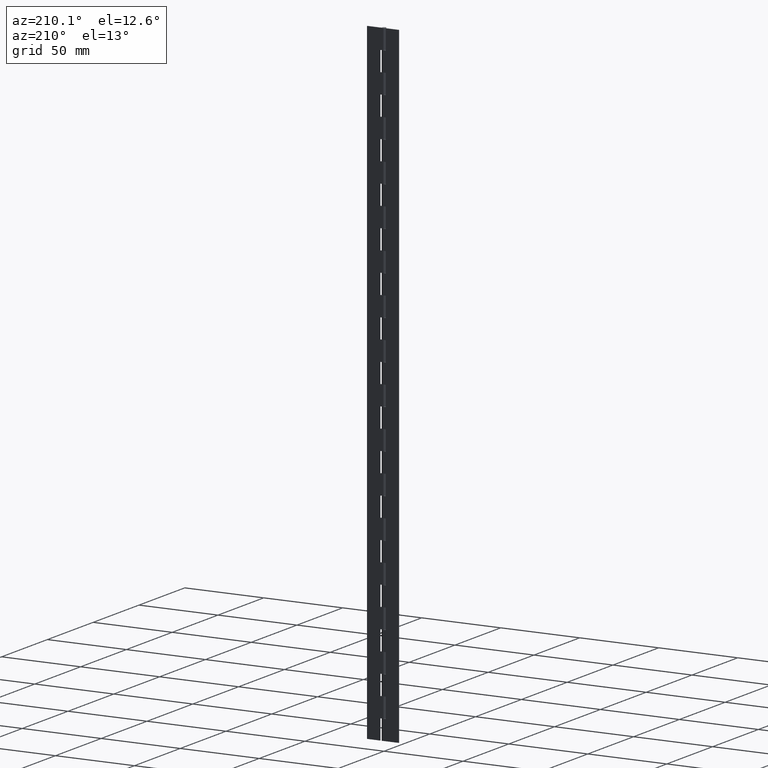
[diagram: clean part render]
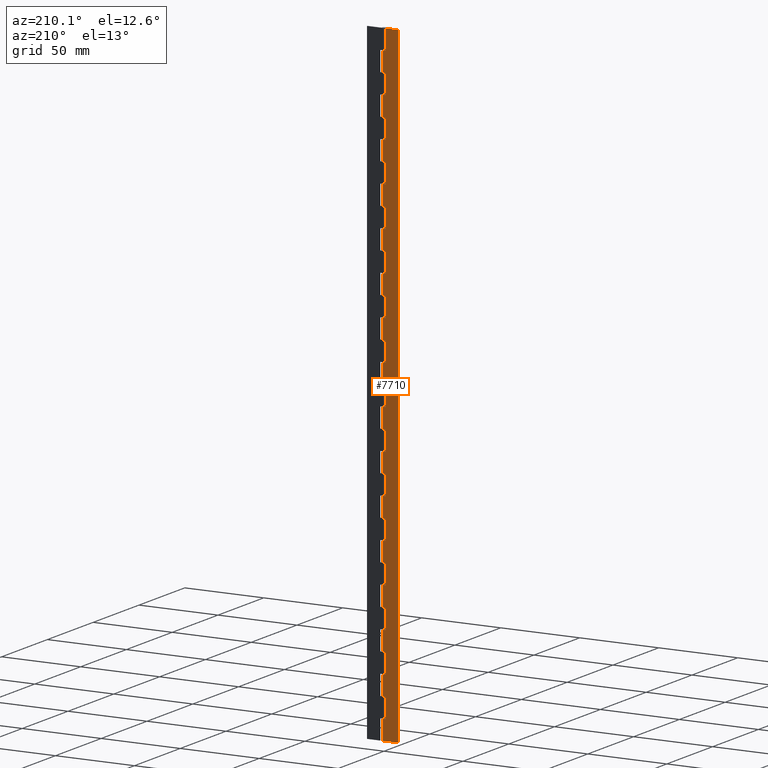
[diagram: same view with one face highlighted and labeled with its STEP entity id]
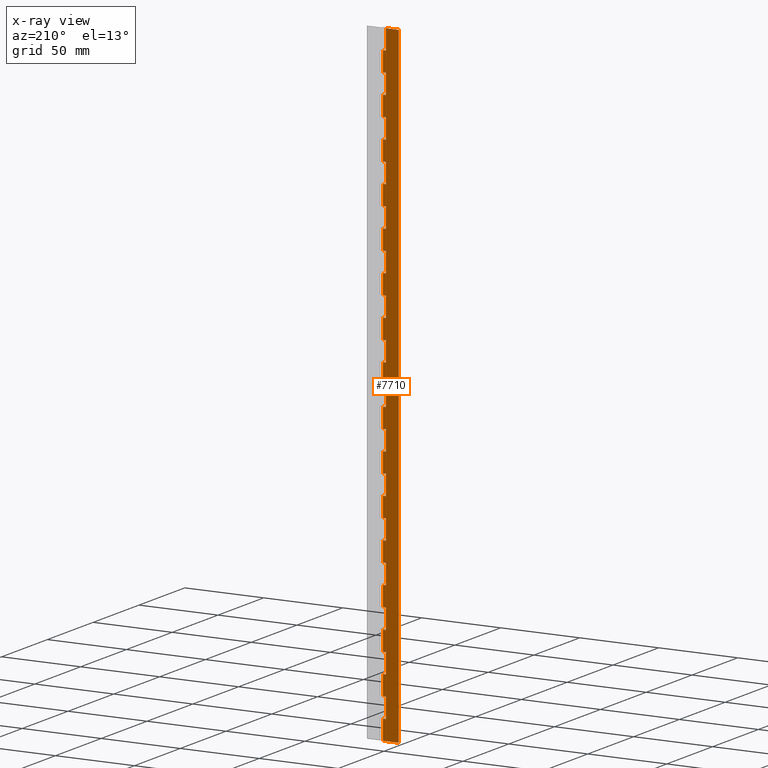
[diagram: x-ray of the same camera — body ghosted, the highlighted face saturated]
A machine part, auxiliary view. The second image highlights one B-rep face of the part: STEP entity #7710.
The next image is the same camera in x-ray: the body ghosted, the highlighted face saturated — about 0% of this face is hidden behind the body in this view.
In plain terms, the highlighted face is a freeform B-spline surface patch.
Its self-contained STEP definition (entity closure, byte-faithful):
#4488=CARTESIAN_POINT('',(0.0,1.250000000000000,387.500000000000000));
#4489=VERTEX_POINT('',#4488);
#4509=CARTESIAN_POINT('',(-1.800003000000000,1.249999999999972,387.500000000000000));
#4510=VERTEX_POINT('',#4509);
#4511=CARTESIAN_POINT('',(0.0,1.250000000000000,387.500000000000000));
#4512=CARTESIAN_POINT('',(-1.800003000000000,1.249999999999972,387.500000000000000));
#4513=QUASI_UNIFORM_CURVE('',1,(#4511,#4512),.UNSPECIFIED.,.F.,.U.);
#4514=EDGE_CURVE('',#4489,#4510,#4513,.T.);
#4572=CARTESIAN_POINT('',(-1.800003000000000,1.250000000000000,400.0));
#4573=VERTEX_POINT('',#4572);
#4574=CARTESIAN_POINT('',(-1.800003000000000,1.249999999999972,387.500000000000000));
#4575=CARTESIAN_POINT('',(-1.800003000000000,1.250000000000000,400.0));
#4576=QUASI_UNIFORM_CURVE('',1,(#4574,#4575),.UNSPECIFIED.,.F.,.U.);
#4577=EDGE_CURVE('',#4510,#4573,#4576,.T.);
#4594=CARTESIAN_POINT('',(0.0,1.250000000000000,362.500000000000000));
#4595=VERTEX_POINT('',#4594);
#4615=CARTESIAN_POINT('',(-1.800003000000000,1.249999999999972,362.500000000000000));
#4616=VERTEX_POINT('',#4615);
#4617=CARTESIAN_POINT('',(0.0,1.250000000000000,362.500000000000000));
#4618=CARTESIAN_POINT('',(-1.800003000000000,1.249999999999972,362.500000000000000));
#4619=QUASI_UNIFORM_CURVE('',1,(#4617,#4618),.UNSPECIFIED.,.F.,.U.);
#4620=EDGE_CURVE('',#4595,#4616,#4619,.T.);
#4670=CARTESIAN_POINT('',(0.0,1.250000000000000,375.0));
#4671=VERTEX_POINT('',#4670);
#4728=CARTESIAN_POINT('',(-1.800003000000000,1.249999999999972,375.0));
#4729=VERTEX_POINT('',#4728);
#4735=CARTESIAN_POINT('',(-1.800003000000000,1.249999999999972,375.0));
#4736=CARTESIAN_POINT('',(0.0,1.250000000000000,375.0));
#4737=QUASI_UNIFORM_CURVE('',1,(#4735,#4736),.UNSPECIFIED.,.F.,.U.);
#4738=EDGE_CURVE('',#4729,#4671,#4737,.T.);
#4754=CARTESIAN_POINT('',(-1.800003000000000,1.249999999999972,362.500000000000000));
#4755=CARTESIAN_POINT('',(-1.800003000000000,1.249999999999972,375.0));
#4756=QUASI_UNIFORM_CURVE('',1,(#4754,#4755),.UNSPECIFIED.,.F.,.U.);
#4757=EDGE_CURVE('',#4616,#4729,#4756,.T.);
#4770=CARTESIAN_POINT('',(0.0,1.250000000000000,337.500000000000000));
#4771=VERTEX_POINT('',#4770);
#4791=CARTESIAN_POINT('',(-1.800003000000000,1.249999999999972,337.500000000000000));
#4792=VERTEX_POINT('',#4791);
#4793=CARTESIAN_POINT('',(0.0,1.250000000000000,337.500000000000000));
#4794=CARTESIAN_POINT('',(-1.800003000000000,1.249999999999972,337.500000000000000));
#4795=QUASI_UNIFORM_CURVE('',1,(#4793,#4794),.UNSPECIFIED.,.F.,.U.);
#4796=EDGE_CURVE('',#4771,#4792,#4795,.T.);
#4846=CARTESIAN_POINT('',(0.0,1.250000000000000,350.0));
#4847=VERTEX_POINT('',#4846);
#4904=CARTESIAN_POINT('',(-1.800003000000000,1.249999999999972,350.0));
#4905=VERTEX_POINT('',#4904);
#4911=CARTESIAN_POINT('',(-1.800003000000000,1.249999999999972,350.0));
#4912=CARTESIAN_POINT('',(0.0,1.250000000000000,350.0));
#4913=QUASI_UNIFORM_CURVE('',1,(#4911,#4912),.UNSPECIFIED.,.F.,.U.);
#4914=EDGE_CURVE('',#4905,#4847,#4913,.T.);
#4930=CARTESIAN_POINT('',(-1.800003000000000,1.249999999999972,337.500000000000000));
#4931=CARTESIAN_POINT('',(-1.800003000000000,1.249999999999972,350.0));
#4932=QUASI_UNIFORM_CURVE('',1,(#4930,#4931),.UNSPECIFIED.,.F.,.U.);
#4933=EDGE_CURVE('',#4792,#4905,#4932,.T.);
#4946=CARTESIAN_POINT('',(0.0,1.250000000000000,312.500000000000000));
#4947=VERTEX_POINT('',#4946);
#4967=CARTESIAN_POINT('',(-1.800003000000000,1.249999999999972,312.500000000000000));
#4968=VERTEX_POINT('',#4967);
#4969=CARTESIAN_POINT('',(0.0,1.250000000000000,312.500000000000000));
#4970=CARTESIAN_POINT('',(-1.800003000000000,1.249999999999972,312.500000000000000));
#4971=QUASI_UNIFORM_CURVE('',1,(#4969,#4970),.UNSPECIFIED.,.F.,.U.);
#4972=EDGE_CURVE('',#4947,#4968,#4971,.T.);
#5022=CARTESIAN_POINT('',(0.0,1.250000000000000,325.0));
#5023=VERTEX_POINT('',#5022);
#5080=CARTESIAN_POINT('',(-1.800003000000000,1.249999999999972,325.0));
#5081=VERTEX_POINT('',#5080);
#5087=CARTESIAN_POINT('',(-1.800003000000000,1.249999999999972,325.0));
#5088=CARTESIAN_POINT('',(0.0,1.250000000000000,325.0));
#5089=QUASI_UNIFORM_CURVE('',1,(#5087,#5088),.UNSPECIFIED.,.F.,.U.);
#5090=EDGE_CURVE('',#5081,#5023,#5089,.T.);
#5106=CARTESIAN_POINT('',(-1.800003000000000,1.249999999999972,312.500000000000000));
#5107=CARTESIAN_POINT('',(-1.800003000000000,1.249999999999972,325.0));
#5108=QUASI_UNIFORM_CURVE('',1,(#5106,#5107),.UNSPECIFIED.,.F.,.U.);
#5109=EDGE_CURVE('',#4968,#5081,#5108,.T.);
#5122=CARTESIAN_POINT('',(0.0,1.250000000000000,287.500000000000000));
#5123=VERTEX_POINT('',#5122);
#5143=CARTESIAN_POINT('',(-1.800003000000000,1.249999999999972,287.500000000000000));
#5144=VERTEX_POINT('',#5143);
#5145=CARTESIAN_POINT('',(0.0,1.250000000000000,287.500000000000000));
#5146=CARTESIAN_POINT('',(-1.800003000000000,1.249999999999972,287.500000000000000));
#5147=QUASI_UNIFORM_CURVE('',1,(#5145,#5146),.UNSPECIFIED.,.F.,.U.);
#5148=EDGE_CURVE('',#5123,#5144,#5147,.T.);
#5198=CARTESIAN_POINT('',(0.0,1.250000000000000,300.0));
#5199=VERTEX_POINT('',#5198);
#5256=CARTESIAN_POINT('',(-1.800003000000000,1.249999999999972,300.0));
#5257=VERTEX_POINT('',#5256);
#5263=CARTESIAN_POINT('',(-1.800003000000000,1.249999999999972,300.0));
#5264=CARTESIAN_POINT('',(0.0,1.250000000000000,300.0));
#5265=QUASI_UNIFORM_CURVE('',1,(#5263,#5264),.UNSPECIFIED.,.F.,.U.);
#5266=EDGE_CURVE('',#5257,#5199,#5265,.T.);
#5282=CARTESIAN_POINT('',(-1.800003000000000,1.249999999999972,287.500000000000000));
#5283=CARTESIAN_POINT('',(-1.800003000000000,1.249999999999972,300.0));
#5284=QUASI_UNIFORM_CURVE('',1,(#5282,#5283),.UNSPECIFIED.,.F.,.U.);
#5285=EDGE_CURVE('',#5144,#5257,#5284,.T.);
#5298=CARTESIAN_POINT('',(0.0,1.250000000000000,262.500000000000000));
#5299=VERTEX_POINT('',#5298);
#5319=CARTESIAN_POINT('',(-1.800003000000000,1.249999999999972,262.500000000000000));
#5320=VERTEX_POINT('',#5319);
#5321=CARTESIAN_POINT('',(0.0,1.250000000000000,262.500000000000000));
#5322=CARTESIAN_POINT('',(-1.800003000000000,1.249999999999972,262.500000000000000));
#5323=QUASI_UNIFORM_CURVE('',1,(#5321,#5322),.UNSPECIFIED.,.F.,.U.);
#5324=EDGE_CURVE('',#5299,#5320,#5323,.T.);
#5374=CARTESIAN_POINT('',(0.0,1.250000000000000,275.0));
#5375=VERTEX_POINT('',#5374);
#5432=CARTESIAN_POINT('',(-1.800003000000000,1.249999999999972,275.0));
#5433=VERTEX_POINT('',#5432);
#5439=CARTESIAN_POINT('',(-1.800003000000000,1.249999999999972,275.0));
#5440=CARTESIAN_POINT('',(0.0,1.250000000000000,275.0));
#5441=QUASI_UNIFORM_CURVE('',1,(#5439,#5440),.UNSPECIFIED.,.F.,.U.);
#5442=EDGE_CURVE('',#5433,#5375,#5441,.T.);
#5458=CARTESIAN_POINT('',(-1.800003000000000,1.249999999999972,262.500000000000000));
#5459=CARTESIAN_POINT('',(-1.800003000000000,1.249999999999972,275.0));
#5460=QUASI_UNIFORM_CURVE('',1,(#5458,#5459),.UNSPECIFIED.,.F.,.U.);
#5461=EDGE_CURVE('',#5320,#5433,#5460,.T.);
#5474=CARTESIAN_POINT('',(0.0,1.250000000000000,237.500000000000000));
#5475=VERTEX_POINT('',#5474);
#5495=CARTESIAN_POINT('',(-1.800003000000000,1.249999999999972,237.500000000000000));
#5496=VERTEX_POINT('',#5495);
#5497=CARTESIAN_POINT('',(0.0,1.250000000000000,237.500000000000000));
#5498=CARTESIAN_POINT('',(-1.800003000000000,1.249999999999972,237.500000000000000));
#5499=QUASI_UNIFORM_CURVE('',1,(#5497,#5498),.UNSPECIFIED.,.F.,.U.);
#5500=EDGE_CURVE('',#5475,#5496,#5499,.T.);
#5550=CARTESIAN_POINT('',(0.0,1.250000000000000,250.0));
#5551=VERTEX_POINT('',#5550);
#5608=CARTESIAN_POINT('',(-1.800003000000000,1.249999999999972,250.0));
#5609=VERTEX_POINT('',#5608);
#5615=CARTESIAN_POINT('',(-1.800003000000000,1.249999999999972,250.0));
#5616=CARTESIAN_POINT('',(0.0,1.250000000000000,250.0));
#5617=QUASI_UNIFORM_CURVE('',1,(#5615,#5616),.UNSPECIFIED.,.F.,.U.);
#5618=EDGE_CURVE('',#5609,#5551,#5617,.T.);
#5634=CARTESIAN_POINT('',(-1.800003000000000,1.249999999999972,237.500000000000000));
#5635=CARTESIAN_POINT('',(-1.800003000000000,1.249999999999972,250.0));
#5636=QUASI_UNIFORM_CURVE('',1,(#5634,#5635),.UNSPECIFIED.,.F.,.U.);
#5637=EDGE_CURVE('',#5496,#5609,#5636,.T.);
#5650=CARTESIAN_POINT('',(0.0,1.250000000000000,212.500000000000000));
#5651=VERTEX_POINT('',#5650);
#5671=CARTESIAN_POINT('',(-1.800003000000000,1.249999999999972,212.500000000000000));
#5672=VERTEX_POINT('',#5671);
#5673=CARTESIAN_POINT('',(0.0,1.250000000000000,212.500000000000000));
#5674=CARTESIAN_POINT('',(-1.800003000000000,1.249999999999972,212.500000000000000));
#5675=QUASI_UNIFORM_CURVE('',1,(#5673,#5674),.UNSPECIFIED.,.F.,.U.);
#5676=EDGE_CURVE('',#5651,#5672,#5675,.T.);
#5726=CARTESIAN_POINT('',(0.0,1.250000000000000,225.0));
#5727=VERTEX_POINT('',#5726);
#5784=CARTESIAN_POINT('',(-1.800003000000000,1.249999999999972,225.0));
#5785=VERTEX_POINT('',#5784);
#5791=CARTESIAN_POINT('',(-1.800003000000000,1.249999999999972,225.0));
#5792=CARTESIAN_POINT('',(0.0,1.250000000000000,225.0));
#5793=QUASI_UNIFORM_CURVE('',1,(#5791,#5792),.UNSPECIFIED.,.F.,.U.);
#5794=EDGE_CURVE('',#5785,#5727,#5793,.T.);
#5810=CARTESIAN_POINT('',(-1.800003000000000,1.249999999999972,212.500000000000000));
#5811=CARTESIAN_POINT('',(-1.800003000000000,1.249999999999972,225.0));
#5812=QUASI_UNIFORM_CURVE('',1,(#5810,#5811),.UNSPECIFIED.,.F.,.U.);
#5813=EDGE_CURVE('',#5672,#5785,#5812,.T.);
#5826=CARTESIAN_POINT('',(0.0,1.250000000000000,187.500000000000000));
#5827=VERTEX_POINT('',#5826);
#5847=CARTESIAN_POINT('',(-1.800003000000000,1.249999999999972,187.500000000000000));
#5848=VERTEX_POINT('',#5847);
#5849=CARTESIAN_POINT('',(0.0,1.250000000000000,187.500000000000000));
#5850=CARTESIAN_POINT('',(-1.800003000000000,1.249999999999972,187.500000000000000));
#5851=QUASI_UNIFORM_CURVE('',1,(#5849,#5850),.UNSPECIFIED.,.F.,.U.);
#5852=EDGE_CURVE('',#5827,#5848,#5851,.T.);
#5902=CARTESIAN_POINT('',(0.0,1.250000000000000,200.0));
#5903=VERTEX_POINT('',#5902);
#5960=CARTESIAN_POINT('',(-1.800003000000000,1.249999999999972,200.0));
#5961=VERTEX_POINT('',#5960);
#5967=CARTESIAN_POINT('',(-1.800003000000000,1.249999999999972,200.0));
#5968=CARTESIAN_POINT('',(0.0,1.250000000000000,200.0));
#5969=QUASI_UNIFORM_CURVE('',1,(#5967,#5968),.UNSPECIFIED.,.F.,.U.);
#5970=EDGE_CURVE('',#5961,#5903,#5969,.T.);
#5986=CARTESIAN_POINT('',(-1.800003000000000,1.249999999999972,187.500000000000000));
#5987=CARTESIAN_POINT('',(-1.800003000000000,1.249999999999972,200.0));
#5988=QUASI_UNIFORM_CURVE('',1,(#5986,#5987),.UNSPECIFIED.,.F.,.U.);
#5989=EDGE_CURVE('',#5848,#5961,#5988,.T.);
#6002=CARTESIAN_POINT('',(0.0,1.250000000000000,162.500000000000000));
#6003=VERTEX_POINT('',#6002);
#6023=CARTESIAN_POINT('',(-1.800003000000000,1.249999999999972,162.500000000000000));
#6024=VERTEX_POINT('',#6023);
#6025=CARTESIAN_POINT('',(0.0,1.250000000000000,162.500000000000000));
#6026=CARTESIAN_POINT('',(-1.800003000000000,1.249999999999972,162.500000000000000));
#6027=QUASI_UNIFORM_CURVE('',1,(#6025,#6026),.UNSPECIFIED.,.F.,.U.);
#6028=EDGE_CURVE('',#6003,#6024,#6027,.T.);
#6078=CARTESIAN_POINT('',(0.0,1.250000000000000,175.0));
#6079=VERTEX_POINT('',#6078);
#6136=CARTESIAN_POINT('',(-1.800003000000000,1.249999999999972,175.0));
#6137=VERTEX_POINT('',#6136);
#6143=CARTESIAN_POINT('',(-1.800003000000000,1.249999999999972,175.0));
#6144=CARTESIAN_POINT('',(0.0,1.250000000000000,175.0));
#6145=QUASI_UNIFORM_CURVE('',1,(#6143,#6144),.UNSPECIFIED.,.F.,.U.);
#6146=EDGE_CURVE('',#6137,#6079,#6145,.T.);
#6162=CARTESIAN_POINT('',(-1.800003000000000,1.249999999999972,162.500000000000000));
#6163=CARTESIAN_POINT('',(-1.800003000000000,1.249999999999972,175.0));
#6164=QUASI_UNIFORM_CURVE('',1,(#6162,#6163),.UNSPECIFIED.,.F.,.U.);
#6165=EDGE_CURVE('',#6024,#6137,#6164,.T.);
#6178=CARTESIAN_POINT('',(0.0,1.250000000000000,137.500000000000000));
#6179=VERTEX_POINT('',#6178);
#6199=CARTESIAN_POINT('',(-1.800003000000000,1.249999999999972,137.500000000000000));
#6200=VERTEX_POINT('',#6199);
#6201=CARTESIAN_POINT('',(0.0,1.250000000000000,137.500000000000000));
#6202=CARTESIAN_POINT('',(-1.800003000000000,1.249999999999972,137.500000000000000));
#6203=QUASI_UNIFORM_CURVE('',1,(#6201,#6202),.UNSPECIFIED.,.F.,.U.);
#6204=EDGE_CURVE('',#6179,#6200,#6203,.T.);
#6254=CARTESIAN_POINT('',(0.0,1.250000000000000,150.0));
#6255=VERTEX_POINT('',#6254);
#6312=CARTESIAN_POINT('',(-1.800003000000000,1.249999999999972,150.0));
#6313=VERTEX_POINT('',#6312);
#6319=CARTESIAN_POINT('',(-1.800003000000000,1.249999999999972,150.0));
#6320=CARTESIAN_POINT('',(0.0,1.250000000000000,150.0));
#6321=QUASI_UNIFORM_CURVE('',1,(#6319,#6320),.UNSPECIFIED.,.F.,.U.);
#6322=EDGE_CURVE('',#6313,#6255,#6321,.T.);
#6338=CARTESIAN_POINT('',(-1.800003000000000,1.249999999999972,137.500000000000000));
#6339=CARTESIAN_POINT('',(-1.800003000000000,1.249999999999972,150.0));
#6340=QUASI_UNIFORM_CURVE('',1,(#6338,#6339),.UNSPECIFIED.,.F.,.U.);
#6341=EDGE_CURVE('',#6200,#6313,#6340,.T.);
#6354=CARTESIAN_POINT('',(0.0,1.250000000000000,112.500000000000000));
#6355=VERTEX_POINT('',#6354);
#6375=CARTESIAN_POINT('',(-1.800003000000000,1.249999999999972,112.500000000000000));
#6376=VERTEX_POINT('',#6375);
#6377=CARTESIAN_POINT('',(0.0,1.250000000000000,112.500000000000000));
#6378=CARTESIAN_POINT('',(-1.800003000000000,1.249999999999972,112.500000000000000));
#6379=QUASI_UNIFORM_CURVE('',1,(#6377,#6378),.UNSPECIFIED.,.F.,.U.);
#6380=EDGE_CURVE('',#6355,#6376,#6379,.T.);
#6430=CARTESIAN_POINT('',(0.0,1.250000000000000,125.0));
#6431=VERTEX_POINT('',#6430);
#6488=CARTESIAN_POINT('',(-1.800003000000000,1.249999999999972,125.0));
#6489=VERTEX_POINT('',#6488);
#6495=CARTESIAN_POINT('',(-1.800003000000000,1.249999999999972,125.0));
#6496=CARTESIAN_POINT('',(0.0,1.250000000000000,125.0));
#6497=QUASI_UNIFORM_CURVE('',1,(#6495,#6496),.UNSPECIFIED.,.F.,.U.);
#6498=EDGE_CURVE('',#6489,#6431,#6497,.T.);
#6514=CARTESIAN_POINT('',(-1.800003000000000,1.249999999999972,112.500000000000000));
#6515=CARTESIAN_POINT('',(-1.800003000000000,1.249999999999972,125.0));
#6516=QUASI_UNIFORM_CURVE('',1,(#6514,#6515),.UNSPECIFIED.,.F.,.U.);
#6517=EDGE_CURVE('',#6376,#6489,#6516,.T.);
#6530=CARTESIAN_POINT('',(0.0,1.250000000000000,87.500000000000000));
#6531=VERTEX_POINT('',#6530);
#6551=CARTESIAN_POINT('',(-1.800003000000000,1.249999999999972,87.500000000000000));
#6552=VERTEX_POINT('',#6551);
#6553=CARTESIAN_POINT('',(0.0,1.250000000000000,87.500000000000000));
#6554=CARTESIAN_POINT('',(-1.800003000000000,1.249999999999972,87.500000000000000));
#6555=QUASI_UNIFORM_CURVE('',1,(#6553,#6554),.UNSPECIFIED.,.F.,.U.);
#6556=EDGE_CURVE('',#6531,#6552,#6555,.T.);
#6606=CARTESIAN_POINT('',(0.0,1.250000000000000,100.0));
#6607=VERTEX_POINT('',#6606);
#6664=CARTESIAN_POINT('',(-1.800003000000000,1.249999999999972,100.0));
#6665=VERTEX_POINT('',#6664);
#6671=CARTESIAN_POINT('',(-1.800003000000000,1.249999999999972,100.0));
#6672=CARTESIAN_POINT('',(0.0,1.250000000000000,100.0));
#6673=QUASI_UNIFORM_CURVE('',1,(#6671,#6672),.UNSPECIFIED.,.F.,.U.);
#6674=EDGE_CURVE('',#6665,#6607,#6673,.T.);
#6690=CARTESIAN_POINT('',(-1.800003000000000,1.249999999999972,87.500000000000000));
#6691=CARTESIAN_POINT('',(-1.800003000000000,1.249999999999972,100.0));
#6692=QUASI_UNIFORM_CURVE('',1,(#6690,#6691),.UNSPECIFIED.,.F.,.U.);
#6693=EDGE_CURVE('',#6552,#6665,#6692,.T.);
#6706=CARTESIAN_POINT('',(0.0,1.250000000000000,62.500000000000000));
#6707=VERTEX_POINT('',#6706);
#6727=CARTESIAN_POINT('',(-1.800003000000000,1.249999999999972,62.500000000000000));
#6728=VERTEX_POINT('',#6727);
#6729=CARTESIAN_POINT('',(0.0,1.250000000000000,62.500000000000000));
#6730=CARTESIAN_POINT('',(-1.800003000000000,1.249999999999972,62.500000000000000));
#6731=QUASI_UNIFORM_CURVE('',1,(#6729,#6730),.UNSPECIFIED.,.F.,.U.);
#6732=EDGE_CURVE('',#6707,#6728,#6731,.T.);
#6782=CARTESIAN_POINT('',(0.0,1.250000000000000,75.0));
#6783=VERTEX_POINT('',#6782);
#6840=CARTESIAN_POINT('',(-1.800003000000000,1.249999999999972,75.0));
#6841=VERTEX_POINT('',#6840);
#6847=CARTESIAN_POINT('',(-1.800003000000000,1.249999999999972,75.0));
#6848=CARTESIAN_POINT('',(0.0,1.250000000000000,75.0));
#6849=QUASI_UNIFORM_CURVE('',1,(#6847,#6848),.UNSPECIFIED.,.F.,.U.);
#6850=EDGE_CURVE('',#6841,#6783,#6849,.T.);
#6866=CARTESIAN_POINT('',(-1.800003000000000,1.249999999999972,62.500000000000000));
#6867=CARTESIAN_POINT('',(-1.800003000000000,1.249999999999972,75.0));
#6868=QUASI_UNIFORM_CURVE('',1,(#6866,#6867),.UNSPECIFIED.,.F.,.U.);
#6869=EDGE_CURVE('',#6728,#6841,#6868,.T.);
#6882=CARTESIAN_POINT('',(0.0,1.250000000000000,37.500000000000000));
#6883=VERTEX_POINT('',#6882);
#6903=CARTESIAN_POINT('',(-1.800003000000000,1.249999999999972,37.500000000000000));
#6904=VERTEX_POINT('',#6903);
#6905=CARTESIAN_POINT('',(0.0,1.250000000000000,37.500000000000000));
#6906=CARTESIAN_POINT('',(-1.800003000000000,1.249999999999972,37.500000000000000));
#6907=QUASI_UNIFORM_CURVE('',1,(#6905,#6906),.UNSPECIFIED.,.F.,.U.);
#6908=EDGE_CURVE('',#6883,#6904,#6907,.T.);
#6958=CARTESIAN_POINT('',(0.0,1.250000000000000,50.0));
#6959=VERTEX_POINT('',#6958);
#7016=CARTESIAN_POINT('',(-1.800003000000000,1.249999999999972,50.0));
#7017=VERTEX_POINT('',#7016);
#7023=CARTESIAN_POINT('',(-1.800003000000000,1.249999999999972,50.0));
#7024=CARTESIAN_POINT('',(0.0,1.250000000000000,50.0));
#7025=QUASI_UNIFORM_CURVE('',1,(#7023,#7024),.UNSPECIFIED.,.F.,.U.);
#7026=EDGE_CURVE('',#7017,#6959,#7025,.T.);
#7042=CARTESIAN_POINT('',(-1.800003000000000,1.249999999999972,37.500000000000000));
#7043=CARTESIAN_POINT('',(-1.800003000000000,1.249999999999972,50.0));
#7044=QUASI_UNIFORM_CURVE('',1,(#7042,#7043),.UNSPECIFIED.,.F.,.U.);
#7045=EDGE_CURVE('',#6904,#7017,#7044,.T.);
#7058=CARTESIAN_POINT('',(0.0,1.250000000000000,12.500000000000000));
#7059=VERTEX_POINT('',#7058);
#7079=CARTESIAN_POINT('',(-1.800003000000000,1.249999999999972,12.500000000000000));
#7080=VERTEX_POINT('',#7079);
#7081=CARTESIAN_POINT('',(0.0,1.250000000000000,12.500000000000000));
#7082=CARTESIAN_POINT('',(-1.800003000000000,1.249999999999972,12.500000000000000));
#7083=QUASI_UNIFORM_CURVE('',1,(#7081,#7082),.UNSPECIFIED.,.F.,.U.);
#7084=EDGE_CURVE('',#7059,#7080,#7083,.T.);
#7134=CARTESIAN_POINT('',(0.0,1.250000000000000,25.0));
#7135=VERTEX_POINT('',#7134);
#7192=CARTESIAN_POINT('',(-1.800003000000000,1.249999999999972,25.0));
#7193=VERTEX_POINT('',#7192);
#7199=CARTESIAN_POINT('',(-1.800003000000000,1.249999999999972,25.0));
#7200=CARTESIAN_POINT('',(0.0,1.250000000000000,25.0));
#7201=QUASI_UNIFORM_CURVE('',1,(#7199,#7200),.UNSPECIFIED.,.F.,.U.);
#7202=EDGE_CURVE('',#7193,#7135,#7201,.T.);
#7218=CARTESIAN_POINT('',(-1.800003000000000,1.249999999999972,12.500000000000000));
#7219=CARTESIAN_POINT('',(-1.800003000000000,1.249999999999972,25.0));
#7220=QUASI_UNIFORM_CURVE('',1,(#7218,#7219),.UNSPECIFIED.,.F.,.U.);
#7221=EDGE_CURVE('',#7080,#7193,#7220,.T.);
#7232=CARTESIAN_POINT('',(-10.0,1.250000000000000,0.0));
#7233=VERTEX_POINT('',#7232);
#7234=CARTESIAN_POINT('',(-2.296137E-016,1.250000000000000,0.0));
#7235=VERTEX_POINT('',#7234);
#7236=CARTESIAN_POINT('',(-10.0,1.250000000000000,0.0));
#7237=CARTESIAN_POINT('',(-2.296137E-016,1.250000000000000,0.0));
#7238=QUASI_UNIFORM_CURVE('',1,(#7236,#7237),.UNSPECIFIED.,.F.,.U.);
#7239=EDGE_CURVE('',#7233,#7235,#7238,.T.);
#7318=CARTESIAN_POINT('',(-10.0,1.250000000000000,400.0));
#7319=VERTEX_POINT('',#7318);
#7320=CARTESIAN_POINT('',(-10.0,1.250000000000000,400.0));
#7321=CARTESIAN_POINT('',(-1.800003000000000,1.250000000000000,400.0));
#7322=QUASI_UNIFORM_CURVE('',1,(#7320,#7321),.UNSPECIFIED.,.F.,.U.);
#7323=EDGE_CURVE('',#7319,#4573,#7322,.T.);
#7345=CARTESIAN_POINT('',(-10.0,1.250000000000000,400.0));
#7346=CARTESIAN_POINT('',(-10.0,1.250000000000000,0.0));
#7347=QUASI_UNIFORM_CURVE('',1,(#7345,#7346),.UNSPECIFIED.,.F.,.U.);
#7348=EDGE_CURVE('',#7319,#7233,#7347,.T.);
#7569=CARTESIAN_POINT('',(0.0,1.250000000000000,387.500000000000000));
#7570=CARTESIAN_POINT('',(0.0,1.250000000000000,375.0));
#7571=QUASI_UNIFORM_CURVE('',1,(#7569,#7570),.UNSPECIFIED.,.F.,.U.);
#7572=EDGE_CURVE('',#4489,#4671,#7571,.T.);
#7577=CARTESIAN_POINT('',(-10.499499980618060,1.250000000000000,-19.979999224722391));
#7578=CARTESIAN_POINT('',(-10.499499980618060,1.250000000000000,419.980009953558520));
#7579=CARTESIAN_POINT('',(0.499500248838961,1.250000000000000,-19.979999224722391));
#7580=CARTESIAN_POINT('',(0.499500248838961,1.250000000000000,419.980009953558520));
#7581=B_SPLINE_SURFACE_WITH_KNOTS('',1,1,((#7577,#7579),(#7578,#7580)),.UNSPECIFIED.,.F.,.F.,.U.,(2,2),(2,2),(0.0,439.960009178280930),(0.0,10.999000229457019),.UNSPECIFIED.);
#7582=ORIENTED_EDGE('',*,*,#4577,.F.);
#7583=ORIENTED_EDGE('',*,*,#4514,.F.);
#7584=ORIENTED_EDGE('',*,*,#7572,.T.);
#7585=ORIENTED_EDGE('',*,*,#4738,.F.);
#7586=ORIENTED_EDGE('',*,*,#4757,.F.);
#7587=ORIENTED_EDGE('',*,*,#4620,.F.);
#7588=CARTESIAN_POINT('',(0.0,1.250000000000000,362.500000000000000));
#7589=CARTESIAN_POINT('',(0.0,1.250000000000000,350.0));
#7590=QUASI_UNIFORM_CURVE('',1,(#7588,#7589),.UNSPECIFIED.,.F.,.U.);
#7591=EDGE_CURVE('',#4595,#4847,#7590,.T.);
#7592=ORIENTED_EDGE('',*,*,#7591,.T.);
#7593=ORIENTED_EDGE('',*,*,#4914,.F.);
#7594=ORIENTED_EDGE('',*,*,#4933,.F.);
#7595=ORIENTED_EDGE('',*,*,#4796,.F.);
#7596=CARTESIAN_POINT('',(0.0,1.250000000000000,337.500000000000000));
#7597=CARTESIAN_POINT('',(0.0,1.250000000000000,325.0));
#7598=QUASI_UNIFORM_CURVE('',1,(#7596,#7597),.UNSPECIFIED.,.F.,.U.);
#7599=EDGE_CURVE('',#4771,#5023,#7598,.T.);
#7600=ORIENTED_EDGE('',*,*,#7599,.T.);
#7601=ORIENTED_EDGE('',*,*,#5090,.F.);
#7602=ORIENTED_EDGE('',*,*,#5109,.F.);
#7603=ORIENTED_EDGE('',*,*,#4972,.F.);
#7604=CARTESIAN_POINT('',(0.0,1.250000000000000,312.500000000000000));
#7605=CARTESIAN_POINT('',(0.0,1.250000000000000,300.0));
#7606=QUASI_UNIFORM_CURVE('',1,(#7604,#7605),.UNSPECIFIED.,.F.,.U.);
#7607=EDGE_CURVE('',#4947,#5199,#7606,.T.);
#7608=ORIENTED_EDGE('',*,*,#7607,.T.);
#7609=ORIENTED_EDGE('',*,*,#5266,.F.);
#7610=ORIENTED_EDGE('',*,*,#5285,.F.);
#7611=ORIENTED_EDGE('',*,*,#5148,.F.);
#7612=CARTESIAN_POINT('',(0.0,1.250000000000000,287.500000000000000));
#7613=CARTESIAN_POINT('',(0.0,1.250000000000000,275.0));
#7614=QUASI_UNIFORM_CURVE('',1,(#7612,#7613),.UNSPECIFIED.,.F.,.U.);
#7615=EDGE_CURVE('',#5123,#5375,#7614,.T.);
#7616=ORIENTED_EDGE('',*,*,#7615,.T.);
#7617=ORIENTED_EDGE('',*,*,#5442,.F.);
#7618=ORIENTED_EDGE('',*,*,#5461,.F.);
#7619=ORIENTED_EDGE('',*,*,#5324,.F.);
#7620=CARTESIAN_POINT('',(0.0,1.250000000000000,262.500000000000000));
#7621=CARTESIAN_POINT('',(0.0,1.250000000000000,250.0));
#7622=QUASI_UNIFORM_CURVE('',1,(#7620,#7621),.UNSPECIFIED.,.F.,.U.);
#7623=EDGE_CURVE('',#5299,#5551,#7622,.T.);
#7624=ORIENTED_EDGE('',*,*,#7623,.T.);
#7625=ORIENTED_EDGE('',*,*,#5618,.F.);
#7626=ORIENTED_EDGE('',*,*,#5637,.F.);
#7627=ORIENTED_EDGE('',*,*,#5500,.F.);
#7628=CARTESIAN_POINT('',(0.0,1.250000000000000,237.500000000000000));
#7629=CARTESIAN_POINT('',(0.0,1.250000000000000,225.0));
#7630=QUASI_UNIFORM_CURVE('',1,(#7628,#7629),.UNSPECIFIED.,.F.,.U.);
#7631=EDGE_CURVE('',#5475,#5727,#7630,.T.);
#7632=ORIENTED_EDGE('',*,*,#7631,.T.);
#7633=ORIENTED_EDGE('',*,*,#5794,.F.);
#7634=ORIENTED_EDGE('',*,*,#5813,.F.);
#7635=ORIENTED_EDGE('',*,*,#5676,.F.);
#7636=CARTESIAN_POINT('',(0.0,1.250000000000000,212.500000000000000));
#7637=CARTESIAN_POINT('',(0.0,1.250000000000000,200.0));
#7638=QUASI_UNIFORM_CURVE('',1,(#7636,#7637),.UNSPECIFIED.,.F.,.U.);
#7639=EDGE_CURVE('',#5651,#5903,#7638,.T.);
#7640=ORIENTED_EDGE('',*,*,#7639,.T.);
#7641=ORIENTED_EDGE('',*,*,#5970,.F.);
#7642=ORIENTED_EDGE('',*,*,#5989,.F.);
#7643=ORIENTED_EDGE('',*,*,#5852,.F.);
#7644=CARTESIAN_POINT('',(0.0,1.250000000000000,187.500000000000000));
#7645=CARTESIAN_POINT('',(0.0,1.250000000000000,175.0));
#7646=QUASI_UNIFORM_CURVE('',1,(#7644,#7645),.UNSPECIFIED.,.F.,.U.);
#7647=EDGE_CURVE('',#5827,#6079,#7646,.T.);
#7648=ORIENTED_EDGE('',*,*,#7647,.T.);
#7649=ORIENTED_EDGE('',*,*,#6146,.F.);
#7650=ORIENTED_EDGE('',*,*,#6165,.F.);
#7651=ORIENTED_EDGE('',*,*,#6028,.F.);
#7652=CARTESIAN_POINT('',(0.0,1.250000000000000,162.500000000000000));
#7653=CARTESIAN_POINT('',(0.0,1.250000000000000,150.0));
#7654=QUASI_UNIFORM_CURVE('',1,(#7652,#7653),.UNSPECIFIED.,.F.,.U.);
#7655=EDGE_CURVE('',#6003,#6255,#7654,.T.);
#7656=ORIENTED_EDGE('',*,*,#7655,.T.);
#7657=ORIENTED_EDGE('',*,*,#6322,.F.);
#7658=ORIENTED_EDGE('',*,*,#6341,.F.);
#7659=ORIENTED_EDGE('',*,*,#6204,.F.);
#7660=CARTESIAN_POINT('',(0.0,1.250000000000000,137.500000000000000));
#7661=CARTESIAN_POINT('',(0.0,1.250000000000000,125.0));
#7662=QUASI_UNIFORM_CURVE('',1,(#7660,#7661),.UNSPECIFIED.,.F.,.U.);
#7663=EDGE_CURVE('',#6179,#6431,#7662,.T.);
#7664=ORIENTED_EDGE('',*,*,#7663,.T.);
#7665=ORIENTED_EDGE('',*,*,#6498,.F.);
#7666=ORIENTED_EDGE('',*,*,#6517,.F.);
#7667=ORIENTED_EDGE('',*,*,#6380,.F.);
#7668=CARTESIAN_POINT('',(0.0,1.250000000000000,112.500000000000000));
#7669=CARTESIAN_POINT('',(0.0,1.250000000000000,100.0));
#7670=QUASI_UNIFORM_CURVE('',1,(#7668,#7669),.UNSPECIFIED.,.F.,.U.);
#7671=EDGE_CURVE('',#6355,#6607,#7670,.T.);
#7672=ORIENTED_EDGE('',*,*,#7671,.T.);
#7673=ORIENTED_EDGE('',*,*,#6674,.F.);
#7674=ORIENTED_EDGE('',*,*,#6693,.F.);
#7675=ORIENTED_EDGE('',*,*,#6556,.F.);
#7676=CARTESIAN_POINT('',(0.0,1.250000000000000,87.500000000000000));
#7677=CARTESIAN_POINT('',(0.0,1.250000000000000,75.0));
#7678=QUASI_UNIFORM_CURVE('',1,(#7676,#7677),.UNSPECIFIED.,.F.,.U.);
#7679=EDGE_CURVE('',#6531,#6783,#7678,.T.);
#7680=ORIENTED_EDGE('',*,*,#7679,.T.);
#7681=ORIENTED_EDGE('',*,*,#6850,.F.);
#7682=ORIENTED_EDGE('',*,*,#6869,.F.);
#7683=ORIENTED_EDGE('',*,*,#6732,.F.);
#7684=CARTESIAN_POINT('',(0.0,1.250000000000000,62.500000000000000));
#7685=CARTESIAN_POINT('',(0.0,1.250000000000000,50.0));
#7686=QUASI_UNIFORM_CURVE('',1,(#7684,#7685),.UNSPECIFIED.,.F.,.U.);
#7687=EDGE_CURVE('',#6707,#6959,#7686,.T.);
#7688=ORIENTED_EDGE('',*,*,#7687,.T.);
#7689=ORIENTED_EDGE('',*,*,#7026,.F.);
#7690=ORIENTED_EDGE('',*,*,#7045,.F.);
#7691=ORIENTED_EDGE('',*,*,#6908,.F.);
#7692=CARTESIAN_POINT('',(0.0,1.250000000000000,37.500000000000000));
#7693=CARTESIAN_POINT('',(0.0,1.250000000000000,25.0));
#7694=QUASI_UNIFORM_CURVE('',1,(#7692,#7693),.UNSPECIFIED.,.F.,.U.);
#7695=EDGE_CURVE('',#6883,#7135,#7694,.T.);
#7696=ORIENTED_EDGE('',*,*,#7695,.T.);
#7697=ORIENTED_EDGE('',*,*,#7202,.F.);
#7698=ORIENTED_EDGE('',*,*,#7221,.F.);
#7699=ORIENTED_EDGE('',*,*,#7084,.F.);
#7700=CARTESIAN_POINT('',(0.0,1.250000000000000,12.500000000000000));
#7701=CARTESIAN_POINT('',(-2.296137E-016,1.250000000000000,0.0));
#7702=QUASI_UNIFORM_CURVE('',1,(#7700,#7701),.UNSPECIFIED.,.F.,.U.);
#7703=EDGE_CURVE('',#7059,#7235,#7702,.T.);
#7704=ORIENTED_EDGE('',*,*,#7703,.T.);
#7705=ORIENTED_EDGE('',*,*,#7239,.F.);
#7706=ORIENTED_EDGE('',*,*,#7348,.F.);
#7707=ORIENTED_EDGE('',*,*,#7323,.T.);
#7708=EDGE_LOOP('',(#7582,#7583,#7584,#7585,#7586,#7587,#7592,#7593,#7594,#7595,#7600,#7601,#7602,#7603,#7608,#7609,#7610,#7611,#7616,#7617,#7618,#7619,#7624,#7625,#7626,#7627,#7632,#7633,#7634,#7635,#7640,#7641,#7642,#7643,#7648,#7649,#7650,#7651,#7656,#7657,#7658,#7659,#7664,#7665,#7666,#7667,#7672,#7673,#7674,#7675,#7680,#7681,#7682,#7683,#7688,#7689,#7690,#7691,#7696,#7697,#7698,#7699,#7704,#7705,#7706,#7707));
#7709=FACE_OUTER_BOUND('',#7708,.T.);
#7710=ADVANCED_FACE('',(#7709),#7581,.T.);